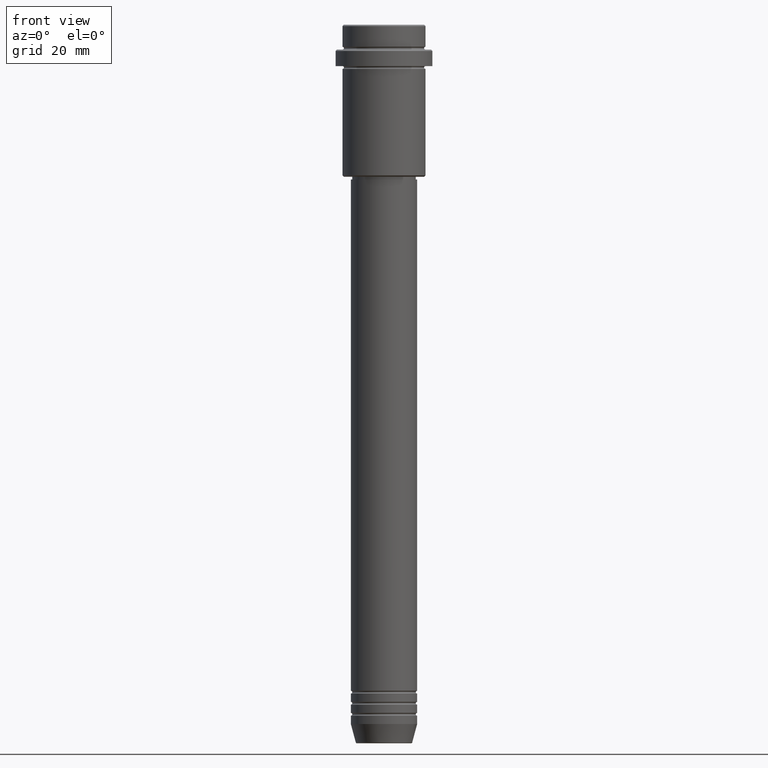
[diagram: clean part render]
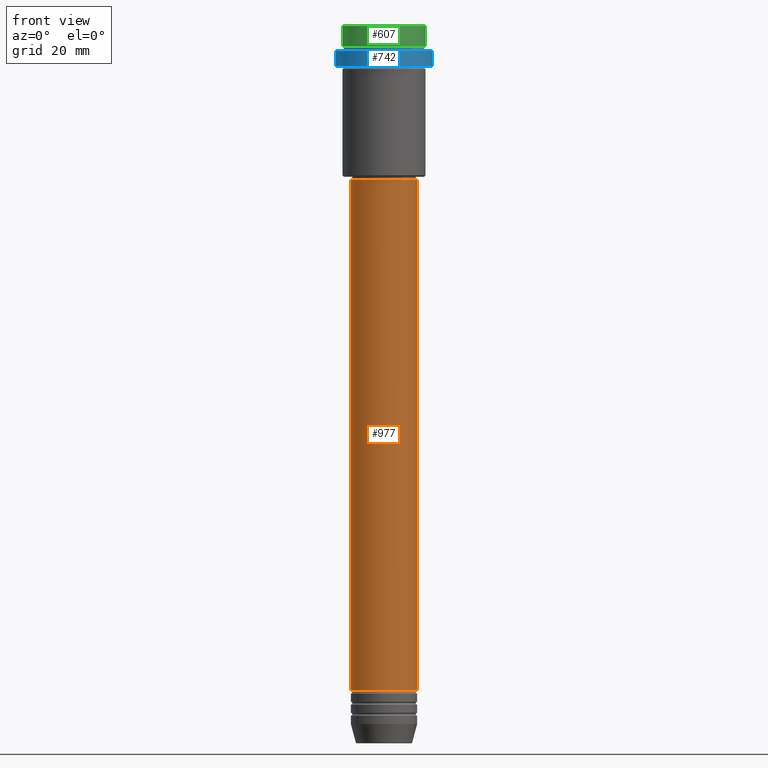
[diagram: same view with three faces highlighted in distinct colors, each labeled with its STEP entity id]
A machine part, front view with three faces highlighted in distinct colors.
Their STEP definitions:

[orange] entity #977 — the highlighted cylindrical surface (edge-blend (fillet) strip) has radius 12 mm, axis along (-0, -0, 1).
#16 = CIRCLE ( 'NONE', #557, 11.99999999999999822 ) ;
#19 = AXIS2_PLACEMENT_3D ( 'NONE', #1149, #1142, #612 ) ;
#44 = EDGE_CURVE ( 'NONE', #1208, #479, #1380, .T. ) ;
#127 = ORIENTED_EDGE ( 'NONE', *, *, #700, .F. ) ;
#156 = EDGE_LOOP ( 'NONE', ( #127, #1025, #190, #869 ) ) ;
#190 = ORIENTED_EDGE ( 'NONE', *, *, #44, .T. ) ;
#194 = VECTOR ( 'NONE', #1302, 1000.000000000000000 ) ;
#264 = CARTESIAN_POINT ( 'NONE',  ( 0.000000000000000000, 0.000000000000000000, -56.00000000000002132 ) ) ;
#416 = EDGE_CURVE ( 'NONE', #1119, #479, #16, .T. ) ;
#433 = CARTESIAN_POINT ( 'NONE',  ( -12.00000000000000000, 1.469576158976823947E-15, 0.000000000000000000 ) ) ;
#479 = VERTEX_POINT ( 'NONE', #1145 ) ;
#483 = DIRECTION ( 'NONE',  ( -0.000000000000000000, -0.000000000000000000, 1.000000000000000000 ) ) ;
#485 = CYLINDRICAL_SURFACE ( 'NONE', #19, 12.00000000000000000 ) ;
#513 = CARTESIAN_POINT ( 'NONE',  ( -11.99999999999999822, 1.469576158976823750E-15, -56.00000000000002132 ) ) ;
#553 = DIRECTION ( 'NONE',  ( -0.000000000000000000, -0.000000000000000000, 1.000000000000000000 ) ) ;
#555 = DIRECTION ( 'NONE',  ( -0.000000000000000000, -0.000000000000000000, 1.000000000000000000 ) ) ;
#557 = AXIS2_PLACEMENT_3D ( 'NONE', #264, #553, #1136 ) ;
#610 = CARTESIAN_POINT ( 'NONE',  ( 12.00000000000000000, 0.000000000000000000, 0.000000000000000000 ) ) ;
#612 = DIRECTION ( 'NONE',  ( 1.000000000000000000, 0.000000000000000000, 0.000000000000000000 ) ) ;
#660 = CARTESIAN_POINT ( 'NONE',  ( 12.00000000000000000, 0.000000000000000000, -240.9999999999998863 ) ) ;
#700 = EDGE_CURVE ( 'NONE', #1201, #1119, #1407, .T. ) ;
#709 = FACE_OUTER_BOUND ( 'NONE', #156, .T. ) ;
#812 = VECTOR ( 'NONE', #483, 1000.000000000000000 ) ;
#815 = CIRCLE ( 'NONE', #1185, 12.00000000000000000 ) ;
#869 = ORIENTED_EDGE ( 'NONE', *, *, #416, .F. ) ;
#977 = ADVANCED_FACE ( 'NONE', ( #709 ), #485, .T. ) ;
#1014 = DIRECTION ( 'NONE',  ( 1.000000000000000000, 0.000000000000000000, 0.000000000000000000 ) ) ;
#1025 = ORIENTED_EDGE ( 'NONE', *, *, #1279, .T. ) ;
#1108 = CARTESIAN_POINT ( 'NONE',  ( 0.000000000000000000, 0.000000000000000000, -240.9999999999998863 ) ) ;
#1119 = VERTEX_POINT ( 'NONE', #513 ) ;
#1136 = DIRECTION ( 'NONE',  ( 1.000000000000000000, 0.000000000000000000, 0.000000000000000000 ) ) ;
#1142 = DIRECTION ( 'NONE',  ( -0.000000000000000000, -0.000000000000000000, 1.000000000000000000 ) ) ;
#1145 = CARTESIAN_POINT ( 'NONE',  ( 11.99999999999999822, 0.000000000000000000, -56.00000000000002132 ) ) ;
#1149 = CARTESIAN_POINT ( 'NONE',  ( 0.000000000000000000, 0.000000000000000000, 0.000000000000000000 ) ) ;
#1185 = AXIS2_PLACEMENT_3D ( 'NONE', #1108, #555, #1014 ) ;
#1201 = VERTEX_POINT ( 'NONE', #1232 ) ;
#1208 = VERTEX_POINT ( 'NONE', #660 ) ;
#1232 = CARTESIAN_POINT ( 'NONE',  ( -12.00000000000000000, 1.469576158976823947E-15, -240.9999999999998863 ) ) ;
#1279 = EDGE_CURVE ( 'NONE', #1201, #1208, #815, .T. ) ;
#1302 = DIRECTION ( 'NONE',  ( -0.000000000000000000, -0.000000000000000000, 1.000000000000000000 ) ) ;
#1380 = LINE ( 'NONE', #610, #812 ) ;
#1407 = LINE ( 'NONE', #433, #194 ) ;

[blue] entity #742 — the highlighted cylindrical surface (partial cylindrical patch) has radius 17.5 mm, axis along (-0, -0, 1).
#79 = AXIS2_PLACEMENT_3D ( 'NONE', #625, #517, #874 ) ;
#92 = CARTESIAN_POINT ( 'NONE',  ( -17.50000000000000000, 2.143131898507868248E-15, 0.000000000000000000 ) ) ;
#114 = DIRECTION ( 'NONE',  ( -0.000000000000000000, -0.000000000000000000, 1.000000000000000000 ) ) ;
#131 = AXIS2_PLACEMENT_3D ( 'NONE', #383, #178, #617 ) ;
#164 = VERTEX_POINT ( 'NONE', #1309 ) ;
#178 = DIRECTION ( 'NONE',  ( 0.000000000000000000, 0.000000000000000000, -1.000000000000000000 ) ) ;
#181 = LINE ( 'NONE', #92, #1363 ) ;
#214 = EDGE_CURVE ( 'NONE', #1198, #928, #395, .T. ) ;
#253 = EDGE_CURVE ( 'NONE', #928, #1002, #738, .T. ) ;
#303 = DIRECTION ( 'NONE',  ( -0.000000000000000000, -0.000000000000000000, 1.000000000000000000 ) ) ;
#383 = CARTESIAN_POINT ( 'NONE',  ( 0.000000000000000000, 0.000000000000000000, -9.500000000000000000 ) ) ;
#395 = CIRCLE ( 'NONE', #79, 17.50000000000000000 ) ;
#517 = DIRECTION ( 'NONE',  ( -0.000000000000000000, -0.000000000000000000, 1.000000000000000000 ) ) ;
#542 = EDGE_CURVE ( 'NONE', #1002, #164, #1004, .T. ) ;
#565 = ORIENTED_EDGE ( 'NONE', *, *, #1400, .F. ) ;
#617 = DIRECTION ( 'NONE',  ( 1.000000000000000000, 0.000000000000000000, 0.000000000000000000 ) ) ;
#625 = CARTESIAN_POINT ( 'NONE',  ( 0.000000000000000000, 0.000000000000000000, -15.00000000000000000 ) ) ;
#655 = ORIENTED_EDGE ( 'NONE', *, *, #214, .T. ) ;
#662 = FACE_OUTER_BOUND ( 'NONE', #1081, .T. ) ;
#673 = CARTESIAN_POINT ( 'NONE',  ( -17.50000000000000000, 2.143131898507868248E-15, -15.00000000000000000 ) ) ;
#738 = LINE ( 'NONE', #1191, #882 ) ;
#742 = ADVANCED_FACE ( 'NONE', ( #662 ), #780, .T. ) ;
#774 = CARTESIAN_POINT ( 'NONE',  ( 0.000000000000000000, 0.000000000000000000, 0.000000000000000000 ) ) ;
#780 = CYLINDRICAL_SURFACE ( 'NONE', #1182, 17.50000000000000000 ) ;
#867 = DIRECTION ( 'NONE',  ( -0.000000000000000000, -0.000000000000000000, 1.000000000000000000 ) ) ;
#874 = DIRECTION ( 'NONE',  ( 1.000000000000000000, 0.000000000000000000, 0.000000000000000000 ) ) ;
#882 = VECTOR ( 'NONE', #867, 1000.000000000000000 ) ;
#928 = VERTEX_POINT ( 'NONE', #1048 ) ;
#997 = DIRECTION ( 'NONE',  ( 1.000000000000000000, 0.000000000000000000, 0.000000000000000000 ) ) ;
#1002 = VERTEX_POINT ( 'NONE', #1188 ) ;
#1004 = CIRCLE ( 'NONE', #131, 17.50000000000000000 ) ;
#1048 = CARTESIAN_POINT ( 'NONE',  ( 17.50000000000000000, 0.000000000000000000, -15.00000000000000000 ) ) ;
#1081 = EDGE_LOOP ( 'NONE', ( #565, #655, #1098, #1146 ) ) ;
#1098 = ORIENTED_EDGE ( 'NONE', *, *, #253, .T. ) ;
#1146 = ORIENTED_EDGE ( 'NONE', *, *, #542, .T. ) ;
#1182 = AXIS2_PLACEMENT_3D ( 'NONE', #774, #114, #997 ) ;
#1188 = CARTESIAN_POINT ( 'NONE',  ( 17.50000000000000000, 0.000000000000000000, -9.500000000000000000 ) ) ;
#1191 = CARTESIAN_POINT ( 'NONE',  ( 17.50000000000000000, 0.000000000000000000, 0.000000000000000000 ) ) ;
#1198 = VERTEX_POINT ( 'NONE', #673 ) ;
#1309 = CARTESIAN_POINT ( 'NONE',  ( -17.50000000000000000, 2.143131898507868248E-15, -9.500000000000000000 ) ) ;
#1363 = VECTOR ( 'NONE', #303, 1000.000000000000000 ) ;
#1400 = EDGE_CURVE ( 'NONE', #1198, #164, #181, .T. ) ;

[green] entity #607 — the highlighted cylindrical surface (partial cylindrical patch) has radius 15 mm, axis along (-0, -0, 1).
#175 = EDGE_CURVE ( 'NONE', #1035, #1284, #538, .T. ) ;
#189 = DIRECTION ( 'NONE',  ( -0.000000000000000000, -0.000000000000000000, 1.000000000000000000 ) ) ;
#249 = EDGE_LOOP ( 'NONE', ( #543, #1022, #322, #644 ) ) ;
#295 = CARTESIAN_POINT ( 'NONE',  ( 15.00000000000000000, 0.000000000000000000, -7.999999999999998224 ) ) ;
#322 = ORIENTED_EDGE ( 'NONE', *, *, #806, .T. ) ;
#360 = VECTOR ( 'NONE', #896, 1000.000000000000000 ) ;
#426 = FACE_OUTER_BOUND ( 'NONE', #249, .T. ) ;
#445 = DIRECTION ( 'NONE',  ( 0.000000000000000000, 0.000000000000000000, -1.000000000000000000 ) ) ;
#448 = DIRECTION ( 'NONE',  ( 1.000000000000000000, 0.000000000000000000, 0.000000000000000000 ) ) ;
#538 = LINE ( 'NONE', #1174, #1405 ) ;
#543 = ORIENTED_EDGE ( 'NONE', *, *, #175, .F. ) ;
#574 = CARTESIAN_POINT ( 'NONE',  ( 0.000000000000000000, 0.000000000000000000, -0.5000000000000108802 ) ) ;
#607 = ADVANCED_FACE ( 'NONE', ( #426 ), #1282, .T. ) ;
#644 = ORIENTED_EDGE ( 'NONE', *, *, #1165, .T. ) ;
#668 = CARTESIAN_POINT ( 'NONE',  ( 0.000000000000000000, 0.000000000000000000, -7.999999999999998224 ) ) ;
#722 = CARTESIAN_POINT ( 'NONE',  ( -15.00000000000000000, 1.836970198721029589E-15, -7.999999999999998224 ) ) ;
#729 = CARTESIAN_POINT ( 'NONE',  ( 0.000000000000000000, 0.000000000000000000, 0.000000000000000000 ) ) ;
#764 = CIRCLE ( 'NONE', #1117, 15.00000000000000000 ) ;
#783 = EDGE_CURVE ( 'NONE', #1035, #1101, #764, .T. ) ;
#806 = EDGE_CURVE ( 'NONE', #1101, #993, #1347, .T. ) ;
#817 = AXIS2_PLACEMENT_3D ( 'NONE', #729, #866, #968 ) ;
#838 = CIRCLE ( 'NONE', #956, 15.00000000000000000 ) ;
#866 = DIRECTION ( 'NONE',  ( -0.000000000000000000, -0.000000000000000000, 1.000000000000000000 ) ) ;
#896 = DIRECTION ( 'NONE',  ( -0.000000000000000000, -0.000000000000000000, 1.000000000000000000 ) ) ;
#956 = AXIS2_PLACEMENT_3D ( 'NONE', #574, #445, #1021 ) ;
#968 = DIRECTION ( 'NONE',  ( 1.000000000000000000, 0.000000000000000000, 0.000000000000000000 ) ) ;
#993 = VERTEX_POINT ( 'NONE', #1041 ) ;
#1021 = DIRECTION ( 'NONE',  ( 1.000000000000000000, 0.000000000000000000, 0.000000000000000000 ) ) ;
#1022 = ORIENTED_EDGE ( 'NONE', *, *, #783, .T. ) ;
#1035 = VERTEX_POINT ( 'NONE', #722 ) ;
#1041 = CARTESIAN_POINT ( 'NONE',  ( 15.00000000000000000, 0.000000000000000000, -0.5000000000000108802 ) ) ;
#1101 = VERTEX_POINT ( 'NONE', #295 ) ;
#1117 = AXIS2_PLACEMENT_3D ( 'NONE', #668, #1121, #448 ) ;
#1121 = DIRECTION ( 'NONE',  ( -0.000000000000000000, -0.000000000000000000, 1.000000000000000000 ) ) ;
#1165 = EDGE_CURVE ( 'NONE', #993, #1284, #838, .T. ) ;
#1174 = CARTESIAN_POINT ( 'NONE',  ( -15.00000000000000000, 1.836970198721029589E-15, 0.000000000000000000 ) ) ;
#1222 = CARTESIAN_POINT ( 'NONE',  ( -15.00000000000000000, 1.836970198721029589E-15, -0.5000000000000108802 ) ) ;
#1282 = CYLINDRICAL_SURFACE ( 'NONE', #817, 15.00000000000000000 ) ;
#1284 = VERTEX_POINT ( 'NONE', #1222 ) ;
#1314 = CARTESIAN_POINT ( 'NONE',  ( 15.00000000000000000, 0.000000000000000000, 0.000000000000000000 ) ) ;
#1347 = LINE ( 'NONE', #1314, #360 ) ;
#1405 = VECTOR ( 'NONE', #189, 1000.000000000000000 ) ;